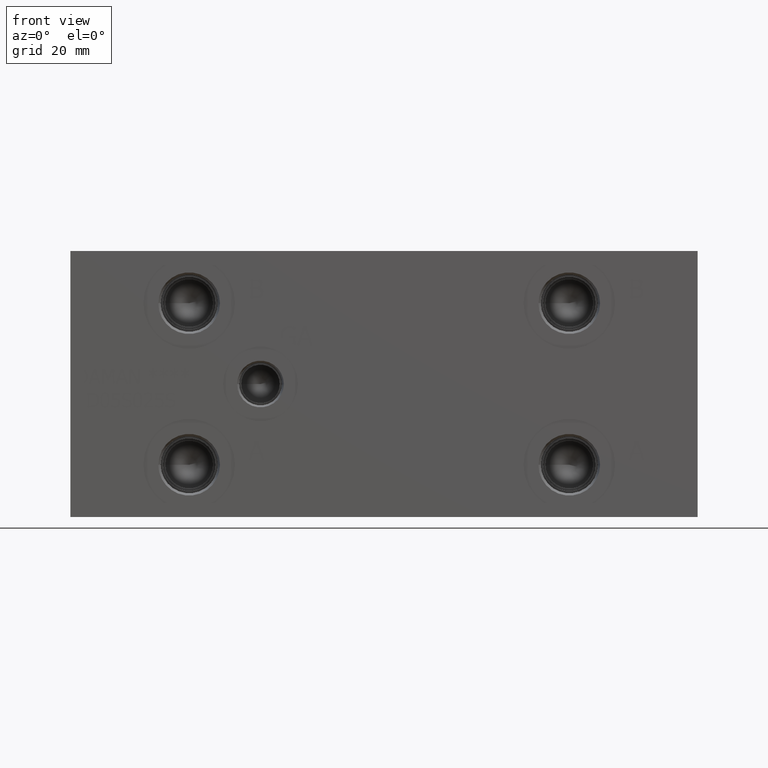
[diagram: clean part render]
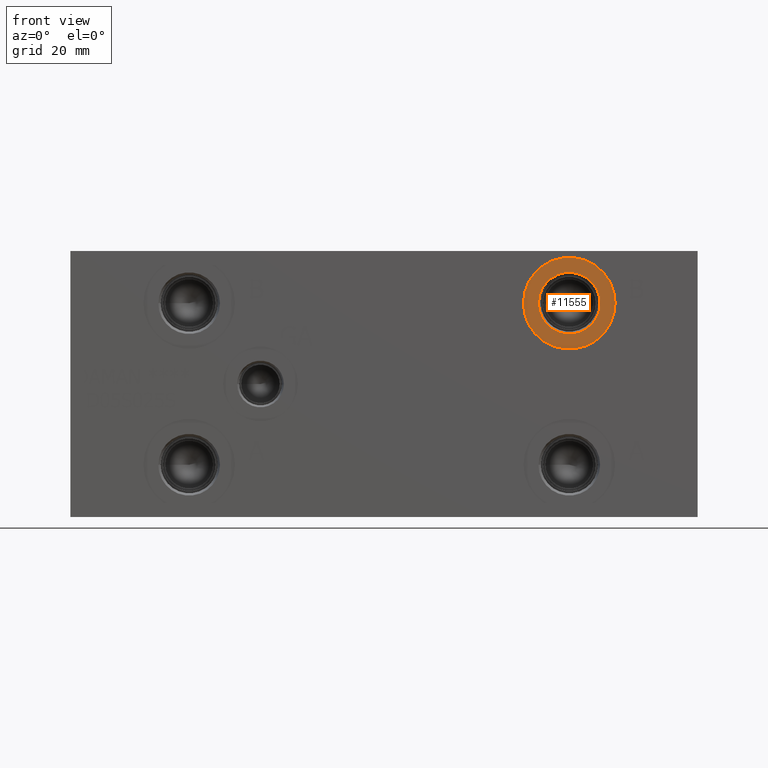
[diagram: same view with one face highlighted and labeled with its STEP entity id]
A machine part, front view. The second image highlights one B-rep face of the part: STEP entity #11555.
In plain terms, the highlighted planar face has unit normal (0, 1, 0).
Its self-contained STEP definition (entity closure, byte-faithful):
#245=CIRCLE('',#12123,15.3162);
#246=CIRCLE('',#12124,15.3162);
#247=CIRCLE('',#12126,10.2997);
#248=CIRCLE('',#12127,10.2997);
#445=FACE_BOUND('',#2128,.T.);
#1466=FACE_OUTER_BOUND('',#2127,.T.);
#2127=EDGE_LOOP('',(#9843,#9844));
#2128=EDGE_LOOP('',(#9845,#9846));
#5282=VERTEX_POINT('',#19717);
#5283=VERTEX_POINT('',#19719);
#5284=VERTEX_POINT('',#19723);
#5285=VERTEX_POINT('',#19724);
#6847=EDGE_CURVE('',#5282,#5283,#245,.T.);
#6848=EDGE_CURVE('',#5283,#5282,#246,.T.);
#6849=EDGE_CURVE('',#5284,#5285,#247,.T.);
#6850=EDGE_CURVE('',#5285,#5284,#248,.T.);
#9843=ORIENTED_EDGE('',*,*,#6848,.F.);
#9844=ORIENTED_EDGE('',*,*,#6847,.F.);
#9845=ORIENTED_EDGE('',*,*,#6849,.T.);
#9846=ORIENTED_EDGE('',*,*,#6850,.T.);
#10585=PLANE('',#12125);
#11555=ADVANCED_FACE('',(#1466,#445),#10585,.F.);
#12123=AXIS2_PLACEMENT_3D('',#19720,#14262,#14263);
#12124=AXIS2_PLACEMENT_3D('',#19721,#14264,#14265);
#12125=AXIS2_PLACEMENT_3D('',#19722,#14266,#14267);
#12126=AXIS2_PLACEMENT_3D('',#19725,#14268,#14269);
#12127=AXIS2_PLACEMENT_3D('',#19726,#14270,#14271);
#14262=DIRECTION('center_axis',(0.,1.,0.));
#14263=DIRECTION('ref_axis',(1.,0.,0.));
#14264=DIRECTION('center_axis',(0.,1.,0.));
#14265=DIRECTION('ref_axis',(1.,0.,0.));
#14266=DIRECTION('center_axis',(0.,1.,0.));
#14267=DIRECTION('ref_axis',(0.,0.,1.));
#14268=DIRECTION('center_axis',(0.,1.,0.));
#14269=DIRECTION('ref_axis',(1.,0.,0.));
#14270=DIRECTION('center_axis',(0.,1.,0.));
#14271=DIRECTION('ref_axis',(1.,0.,0.));
#19717=CARTESIAN_POINT('',(151.3586,0.7874,71.4502));
#19719=CARTESIAN_POINT('',(181.991,0.7874,71.4502));
#19720=CARTESIAN_POINT('Origin',(166.6748,0.7874,71.4502));
#19721=CARTESIAN_POINT('Origin',(166.6748,0.7874,71.4502));
#19722=CARTESIAN_POINT('Origin',(176.9745,0.7874,71.4502));
#19723=CARTESIAN_POINT('',(176.9745,0.7874,71.4502));
#19724=CARTESIAN_POINT('',(156.3751,0.7874,71.4502));
#19725=CARTESIAN_POINT('Origin',(166.6748,0.7874,71.4502));
#19726=CARTESIAN_POINT('Origin',(166.6748,0.7874,71.4502));